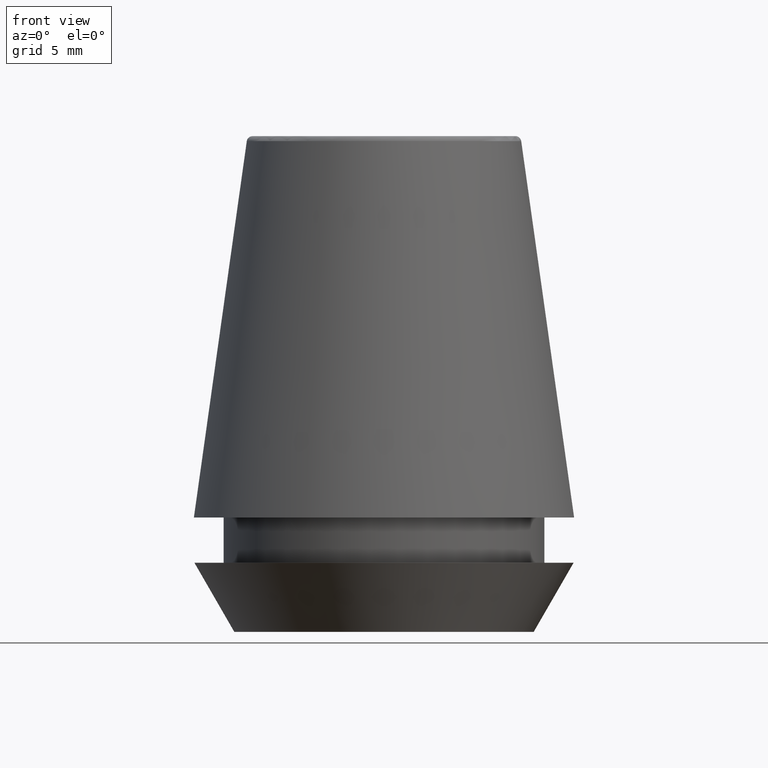
[diagram: clean part render]
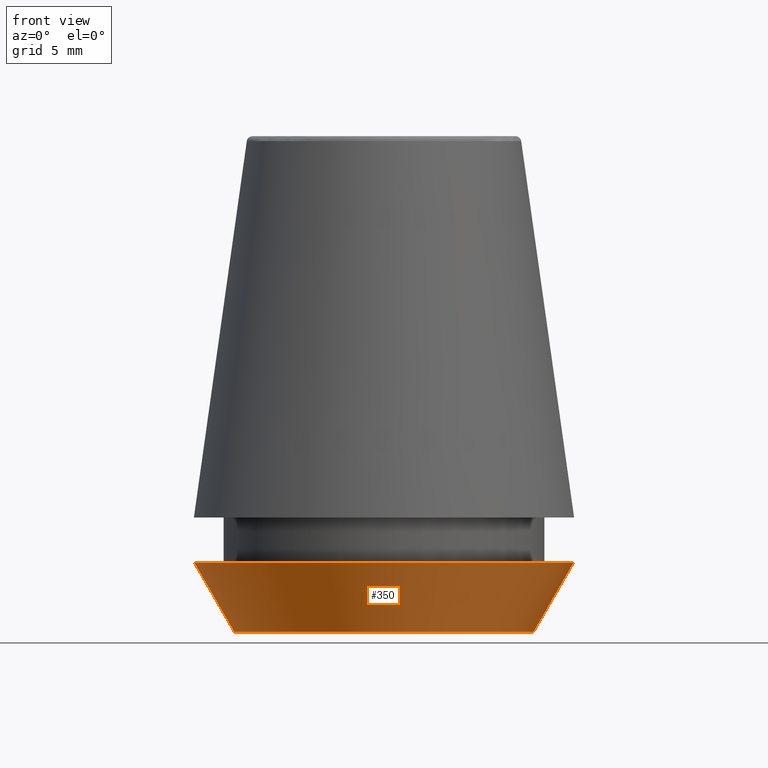
[diagram: same view with one face highlighted and labeled with its STEP entity id]
A machine part, front view. The second image highlights one B-rep face of the part: STEP entity #350.
In plain terms, the highlighted conical surface has half-angle 30 deg.
Its self-contained STEP definition (entity closure, byte-faithful):
#25 = LINE ( 'NONE', #301, #80 ) ;
#38 = ORIENTED_EDGE ( 'NONE', *, *, #267, .T. ) ;
#49 = CARTESIAN_POINT ( 'NONE',  ( -10.26217568973925200, 1.424397449982127500E-015, 0.0000000000000000000 ) ) ;
#54 = FACE_OUTER_BOUND ( 'NONE', #169, .T. ) ;
#61 = ORIENTED_EDGE ( 'NONE', *, *, #307, .F. ) ;
#72 = DIRECTION ( 'NONE',  ( -0.0000000000000000000, -0.0000000000000000000, 1.000000000000000000 ) ) ;
#80 = VECTOR ( 'NONE', #126, 1000.000000000000200 ) ;
#96 = AXIS2_PLACEMENT_3D ( 'NONE', #136, #259, #303 ) ;
#99 = VERTEX_POINT ( 'NONE', #49 ) ;
#105 = DIRECTION ( 'NONE',  ( -0.4999999999999957800, 6.123233995736714300E-017, 0.8660254037844410400 ) ) ;
#106 = CARTESIAN_POINT ( 'NONE',  ( -10.26217568973925200, 1.256754061072695800E-015, 0.0000000000000000000 ) ) ;
#109 = CIRCLE ( 'NONE', #96, 10.26217568973925200 ) ;
#114 = DIRECTION ( 'NONE',  ( 1.000000000000000000, 0.0000000000000000000, 0.0000000000000000000 ) ) ;
#126 = DIRECTION ( 'NONE',  ( 0.4999999999999957800, 0.0000000000000000000, 0.8660254037844410400 ) ) ;
#136 = CARTESIAN_POINT ( 'NONE',  ( 0.0000000000000000000, 0.0000000000000000000, 0.0000000000000000000 ) ) ;
#137 = DIRECTION ( 'NONE',  ( -0.0000000000000000000, -0.0000000000000000000, 1.000000000000000000 ) ) ;
#143 = CARTESIAN_POINT ( 'NONE',  ( 10.26217568973925200, 0.0000000000000000000, 0.0000000000000000000 ) ) ;
#151 = VECTOR ( 'NONE', #105, 1000.000000000000200 ) ;
#169 = EDGE_LOOP ( 'NONE', ( #298, #38, #189, #61 ) ) ;
#177 = VERTEX_POINT ( 'NONE', #143 ) ;
#188 = CONICAL_SURFACE ( 'NONE', #334, 10.26217568973925200, 0.5235987755982940400 ) ;
#189 = ORIENTED_EDGE ( 'NONE', *, *, #264, .T. ) ;
#222 = DIRECTION ( 'NONE',  ( 1.000000000000000000, 0.0000000000000000000, 0.0000000000000000000 ) ) ;
#226 = AXIS2_PLACEMENT_3D ( 'NONE', #310, #72, #114 ) ;
#242 = CARTESIAN_POINT ( 'NONE',  ( -13.00000000000000000, 1.592040838891559100E-015, 4.742050807568884500 ) ) ;
#254 = CIRCLE ( 'NONE', #226, 13.00000000000000000 ) ;
#255 = EDGE_CURVE ( 'NONE', #99, #281, #324, .T. ) ;
#259 = DIRECTION ( 'NONE',  ( -0.0000000000000000000, -0.0000000000000000000, 1.000000000000000000 ) ) ;
#264 = EDGE_CURVE ( 'NONE', #177, #387, #25, .T. ) ;
#267 = EDGE_CURVE ( 'NONE', #99, #177, #109, .T. ) ;
#281 = VERTEX_POINT ( 'NONE', #242 ) ;
#298 = ORIENTED_EDGE ( 'NONE', *, *, #255, .F. ) ;
#301 = CARTESIAN_POINT ( 'NONE',  ( 10.26217568973925200, 0.0000000000000000000, 0.0000000000000000000 ) ) ;
#303 = DIRECTION ( 'NONE',  ( 1.000000000000000000, 0.0000000000000000000, 0.0000000000000000000 ) ) ;
#307 = EDGE_CURVE ( 'NONE', #281, #387, #254, .T. ) ;
#310 = CARTESIAN_POINT ( 'NONE',  ( 0.0000000000000000000, 0.0000000000000000000, 4.742050807568884500 ) ) ;
#324 = LINE ( 'NONE', #106, #151 ) ;
#334 = AXIS2_PLACEMENT_3D ( 'NONE', #341, #137, #222 ) ;
#341 = CARTESIAN_POINT ( 'NONE',  ( 0.0000000000000000000, 0.0000000000000000000, 0.0000000000000000000 ) ) ;
#350 = ADVANCED_FACE ( 'NONE', ( #54 ), #188, .T. ) ;
#359 = CARTESIAN_POINT ( 'NONE',  ( 13.00000000000000000, 0.0000000000000000000, 4.742050807568884500 ) ) ;
#387 = VERTEX_POINT ( 'NONE', #359 ) ;